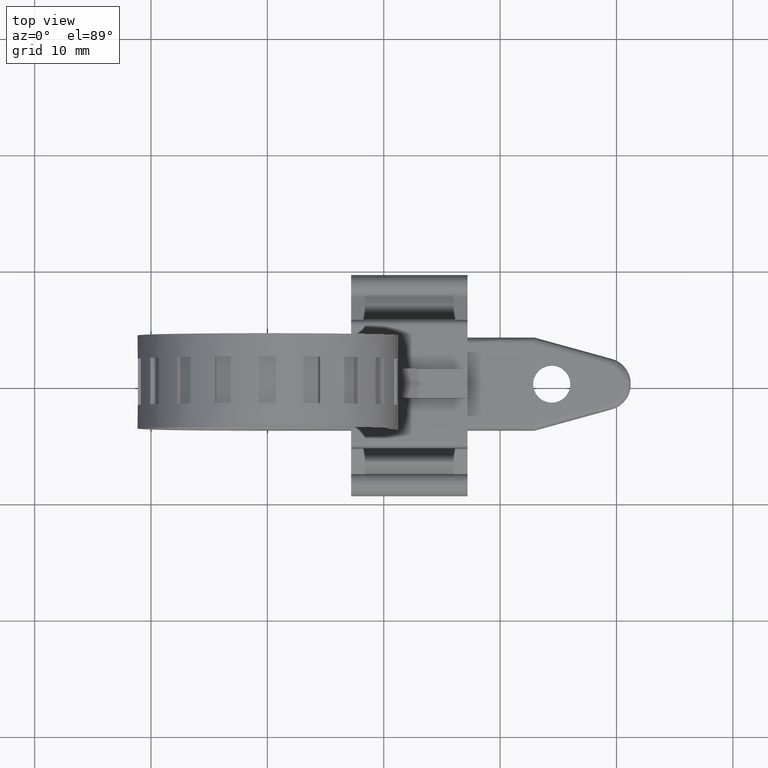
[diagram: clean part render]
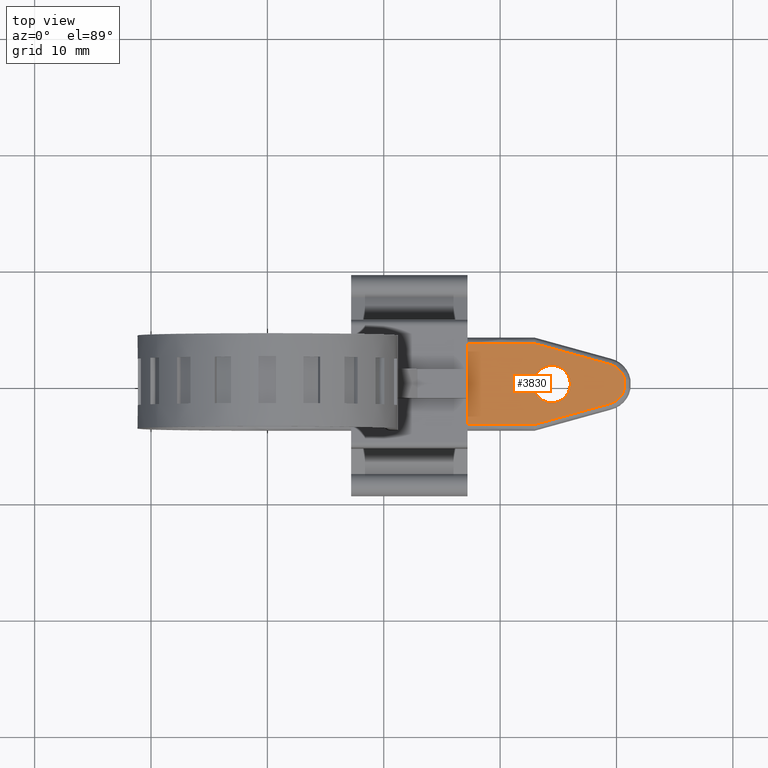
[diagram: same view with one face highlighted and labeled with its STEP entity id]
A machine part, top view. The second image highlights one B-rep face of the part: STEP entity #3830.
In plain terms, the highlighted face is a freeform B-spline surface patch.
Its self-contained STEP definition (entity closure, byte-faithful):
#79=CARTESIAN_POINT('',(23.314545099250640,-1.141200833841867,-10.0));
#80=VERTEX_POINT('',#79);
#86=CARTESIAN_POINT('',(24.435999452946490,-1.599999999999907,-10.0));
#87=VERTEX_POINT('',#86);
#88=CARTESIAN_POINT('',(24.435999452946490,-1.599999999999907,-10.0));
#89=CARTESIAN_POINT('',(24.254749882650781,-1.600136456673561,-10.000000000000020));
#90=CARTESIAN_POINT('',(24.002430030244721,-1.556632950729451,-9.999999999999989));
#91=CARTESIAN_POINT('',(23.621104679719942,-1.392460794337070,-10.000000000000011));
#92=CARTESIAN_POINT('',(23.429906362106600,-1.254678650272071,-10.000000000000011));
#93=CARTESIAN_POINT('',(23.314545099250640,-1.141200833841867,-10.0));
#94=B_SPLINE_CURVE_WITH_KNOTS('',3,(#88,#89,#90,#91,#92,#93),.UNSPECIFIED.,.F.,.U.,(4,1,1,4),(0.000000013596540,0.543678261587329,0.757257994766766,1.242681533203548),.UNSPECIFIED.);
#95=EDGE_CURVE('',#87,#80,#94,.T.);
#97=CARTESIAN_POINT('',(26.036000000000001,0.0,-10.0));
#98=VERTEX_POINT('',#97);
#99=CARTESIAN_POINT('',(26.036000000000001,0.0,-10.0));
#100=CARTESIAN_POINT('',(26.036050492453789,-0.143994116947893,-10.0));
#101=CARTESIAN_POINT('',(26.002186587456659,-0.392676208799142,-9.999999999999991));
#102=CARTESIAN_POINT('',(25.867281713616709,-0.742431577971702,-10.000000000000011));
#103=CARTESIAN_POINT('',(25.689541632746639,-1.011992390424484,-9.999999999999996));
#104=CARTESIAN_POINT('',(25.434066824162411,-1.267499508801031,-9.999999999999998));
#105=CARTESIAN_POINT('',(25.149491715285482,-1.447700311673275,-10.000000000000011));
#106=CARTESIAN_POINT('',(24.795956915515120,-1.571725554159203,-10.0));
#107=CARTESIAN_POINT('',(24.566899573814979,-1.600029696695359,-10.0));
#108=CARTESIAN_POINT('',(24.435999452946490,-1.599999999999907,-10.0));
#109=B_SPLINE_CURVE_WITH_KNOTS('',3,(#99,#100,#101,#102,#103,#104,#105,#106,#107,#108),.UNSPECIFIED.,.F.,.U.,(4,1,1,1,1,1,1,4),(0.000000056140915,0.431970137306017,0.746134376450957,1.119203929897348,1.394090110942929,1.826060912338060,2.120594869391015,2.513290200935472),.UNSPECIFIED.);
#110=EDGE_CURVE('',#98,#87,#109,.T.);
#112=CARTESIAN_POINT('',(24.436000547053538,1.599999999999906,-10.0));
#113=VERTEX_POINT('',#112);
#114=CARTESIAN_POINT('',(24.436000547053538,1.599999999999906,-10.0));
#115=CARTESIAN_POINT('',(24.638926391554399,1.600207500384509,-9.999999999999984));
#116=CARTESIAN_POINT('',(24.985659074126481,1.533083924840616,-10.000000000000060));
#117=CARTESIAN_POINT('',(25.376423317711708,1.311685211353241,-9.999999999999940));
#118=CARTESIAN_POINT('',(25.633070960019769,1.076133640287182,-10.000000000000060));
#119=CARTESIAN_POINT('',(25.848600394711269,0.785632366694658,-10.000000000000011));
#120=CARTESIAN_POINT('',(26.000514867467789,0.418888846804333,-10.000000000000020));
#121=CARTESIAN_POINT('',(26.036019219092129,0.130895287808468,-9.999999999999998));
#122=CARTESIAN_POINT('',(26.036000000000001,0.0,-10.0));
#123=B_SPLINE_CURVE_WITH_KNOTS('',3,(#114,#115,#116,#117,#118,#119,#120,#121,#122),.UNSPECIFIED.,.F.,.U.,(4,1,1,1,1,1,4),(0.000000056331142,0.608687728947772,1.040670461661401,1.335171807848389,1.649340070472496,2.120594348823151,2.513289584274786),.UNSPECIFIED.);
#124=EDGE_CURVE('',#113,#98,#123,.T.);
#126=CARTESIAN_POINT('',(23.294799359552659,1.121454707362894,-10.0));
#127=VERTEX_POINT('',#126);
#128=CARTESIAN_POINT('',(23.294799359552659,1.121454707362894,-10.0));
#129=CARTESIAN_POINT('',(23.410706163746031,1.239523272985817,-10.000000000000041));
#130=CARTESIAN_POINT('',(23.641951764104061,1.411169723780476,-9.999999999999963));
#131=CARTESIAN_POINT('',(24.038958077419380,1.566152553052406,-10.000000000000030));
#132=CARTESIAN_POINT('',(24.297023167911629,1.600044669066972,-9.999999999999996));
#133=CARTESIAN_POINT('',(24.436000547053538,1.599999999999906,-10.0));
#134=B_SPLINE_CURVE_WITH_KNOTS('',3,(#128,#129,#130,#131,#132,#133),.UNSPECIFIED.,.F.,.U.,(4,1,1,4),(0.000000015188152,0.496332536572291,0.853688216134597,1.270608366407467),.UNSPECIFIED.);
#135=EDGE_CURVE('',#127,#113,#134,.T.);
#221=CARTESIAN_POINT('',(22.835999999999999,0.0,-10.0));
#222=VERTEX_POINT('',#221);
#223=CARTESIAN_POINT('',(22.835999999999999,0.0,-10.0));
#224=CARTESIAN_POINT('',(22.835961595476071,0.135922151482010,-10.0));
#225=CARTESIAN_POINT('',(22.868362715676628,0.388318598275756,-9.999999999999991));
#226=CARTESIAN_POINT('',(23.016728970572721,0.777716981774805,-10.000000000000011));
#227=CARTESIAN_POINT('',(23.181321570495481,1.006096577409905,-10.000000000000011));
#228=CARTESIAN_POINT('',(23.294799359552659,1.121454707362894,-10.0));
#229=B_SPLINE_CURVE_WITH_KNOTS('',3,(#223,#224,#225,#226,#227,#228),.UNSPECIFIED.,.F.,.U.,(4,1,1,4),(0.000000013594002,0.407756697681166,0.757258261955232,1.242681971681430),.UNSPECIFIED.);
#230=EDGE_CURVE('',#222,#127,#229,.T.);
#232=CARTESIAN_POINT('',(23.314545099250640,-1.141200833841867,-10.0));
#233=CARTESIAN_POINT('',(23.191729480634329,-1.020668096957040,-9.999999999999996));
#234=CARTESIAN_POINT('',(23.049148356624261,-0.825970937196342,-10.000000000000011));
#235=CARTESIAN_POINT('',(22.880186109058510,-0.436691439471850,-9.999999999999989));
#236=CARTESIAN_POINT('',(22.835855970135491,-0.185324057031745,-10.000000000000020));
#237=CARTESIAN_POINT('',(22.835999999999999,0.0,-10.0));
#238=B_SPLINE_CURVE_WITH_KNOTS('',3,(#232,#233,#234,#235,#236,#237),.UNSPECIFIED.,.F.,.U.,(4,1,1,4),(0.000000015183401,0.516190143935640,0.714711525182580,1.270607925553771),.UNSPECIFIED.);
#239=EDGE_CURVE('',#80,#222,#238,.T.);
#962=CARTESIAN_POINT('',(29.364601214751051,-1.708555272793075,-9.999999999999890));
#963=VERTEX_POINT('',#962);
#975=CARTESIAN_POINT('',(22.868321908632151,-3.500000000000000,-9.999999999999890));
#976=VERTEX_POINT('',#975);
#977=CARTESIAN_POINT('',(22.868321908632151,-3.500000000000000,-9.999999999999890));
#978=CARTESIAN_POINT('',(29.364601214751051,-1.708555272793075,-9.999999999999890));
#979=QUASI_UNIFORM_CURVE('',1,(#977,#978),.UNSPECIFIED.,.F.,.U.);
#980=EDGE_CURVE('',#976,#963,#979,.T.);
#1022=CARTESIAN_POINT('',(30.699999999999999,-0.353134535269372,-9.999999999999890));
#1023=VERTEX_POINT('',#1022);
#1035=CARTESIAN_POINT('',(29.364601214751051,-1.708555272793075,-9.999999999999890));
#1036=CARTESIAN_POINT('',(29.497589265806120,-1.679108004586955,-9.999999999999892));
#1037=CARTESIAN_POINT('',(29.766599553641051,-1.585492999643014,-9.999999999999901));
#1038=CARTESIAN_POINT('',(30.094017859241951,-1.372251664051428,-9.999999999999881));
#1039=CARTESIAN_POINT('',(30.374577216376832,-1.087463329534524,-9.999999999999909));
#1040=CARTESIAN_POINT('',(30.582938396045090,-0.756926206690277,-9.999999999999837));
#1041=CARTESIAN_POINT('',(30.672537008904431,-0.486545644042777,-9.999999999999917));
#1042=CARTESIAN_POINT('',(30.699999999999999,-0.353134535269372,-9.999999999999890));
#1043=B_SPLINE_CURVE_WITH_KNOTS('',3,(#1035,#1036,#1037,#1038,#1039,#1040,#1041,#1042),.UNSPECIFIED.,.F.,.U.,(4,1,1,1,1,4),(0.000000027176362,0.408631646765388,0.848704171422450,1.163021750079061,1.603094274736303,2.011725894325623),.UNSPECIFIED.);
#1044=EDGE_CURVE('',#963,#1023,#1043,.T.);
#1075=CARTESIAN_POINT('',(29.364601214755250,1.708555272792145,-9.999999999999890));
#1076=VERTEX_POINT('',#1075);
#1096=CARTESIAN_POINT('',(22.868321908632751,3.499999999999950,-9.999999999999890));
#1097=VERTEX_POINT('',#1096);
#1109=CARTESIAN_POINT('',(29.364601214755250,1.708555272792145,-9.999999999999890));
#1110=CARTESIAN_POINT('',(22.868321908632751,3.499999999999950,-9.999999999999890));
#1111=QUASI_UNIFORM_CURVE('',1,(#1109,#1110),.UNSPECIFIED.,.F.,.U.);
#1112=EDGE_CURVE('',#1076,#1097,#1111,.T.);
#1133=CARTESIAN_POINT('',(30.699999999999999,0.353134535269372,-9.999999999999890));
#1134=VERTEX_POINT('',#1133);
#1146=CARTESIAN_POINT('',(30.699999999999999,-0.353134535269372,-9.999999999999890));
#1147=CARTESIAN_POINT('',(30.699999999999999,0.353134535269372,-9.999999999999890));
#1148=QUASI_UNIFORM_CURVE('',1,(#1146,#1147),.UNSPECIFIED.,.F.,.U.);
#1149=EDGE_CURVE('',#1023,#1134,#1148,.T.);
#1178=CARTESIAN_POINT('',(30.699999999999999,0.353134535269372,-9.999999999999890));
#1179=CARTESIAN_POINT('',(30.664129015672920,0.527610821482105,-9.999999999999870));
#1180=CARTESIAN_POINT('',(30.549529444730350,0.835584042447412,-9.999999999999920));
#1181=CARTESIAN_POINT('',(30.267915978338390,1.218387498599526,-9.999999999999869));
#1182=CARTESIAN_POINT('',(29.883537636756991,1.532445232818671,-9.999999999999861));
#1183=CARTESIAN_POINT('',(29.559013133286001,1.665622916966663,-9.999999999999956));
#1184=CARTESIAN_POINT('',(29.364601214755250,1.708555272792145,-9.999999999999890));
#1185=B_SPLINE_CURVE_WITH_KNOTS('',3,(#1178,#1179,#1180,#1181,#1182,#1183,#1184),.UNSPECIFIED.,.F.,.U.,(4,1,1,1,4),(0.000000027174395,0.534365630621432,0.974436414956052,1.414494580336615,2.011725894321348),.UNSPECIFIED.);
#1186=EDGE_CURVE('',#1134,#1076,#1185,.T.);
#3717=CARTESIAN_POINT('',(17.199999999999999,-3.500000000000000,-9.999999999999890));
#3718=VERTEX_POINT('',#3717);
#3744=CARTESIAN_POINT('',(17.199999999999999,-3.500000000000000,-9.999999999999890));
#3745=CARTESIAN_POINT('',(22.868321908632151,-3.500000000000000,-9.999999999999890));
#3746=QUASI_UNIFORM_CURVE('',1,(#3744,#3745),.UNSPECIFIED.,.F.,.U.);
#3747=EDGE_CURVE('',#3718,#976,#3746,.T.);
#3766=CARTESIAN_POINT('',(17.199999999999999,3.499999999999950,-9.999999999999890));
#3767=VERTEX_POINT('',#3766);
#3775=CARTESIAN_POINT('',(22.868321908632751,3.499999999999950,-9.999999999999890));
#3776=CARTESIAN_POINT('',(17.199999999999999,3.499999999999950,-9.999999999999890));
#3777=QUASI_UNIFORM_CURVE('',1,(#3775,#3776),.UNSPECIFIED.,.F.,.U.);
#3778=EDGE_CURVE('',#1097,#3767,#3777,.T.);
#3803=CARTESIAN_POINT('',(31.374325812701290,-3.849649986432640,-9.999999999999890));
#3804=CARTESIAN_POINT('',(16.525675635691581,-3.849649986432640,-9.999999999999890));
#3805=CARTESIAN_POINT('',(31.374325812701290,3.849650174187221,-9.999999999999890));
#3806=CARTESIAN_POINT('',(16.525675635691581,3.849650174187221,-9.999999999999890));
#3807=B_SPLINE_SURFACE_WITH_KNOTS('',1,1,((#3803,#3805),(#3804,#3806)),.UNSPECIFIED.,.F.,.F.,.U.,(2,2),(2,2),(0.0,14.848650177009700),(0.0,7.699300160619861),.UNSPECIFIED.);
#3808=ORIENTED_EDGE('',*,*,#3778,.T.);
#3809=CARTESIAN_POINT('',(17.199999999999999,3.499999999999950,-9.999999999999890));
#3810=CARTESIAN_POINT('',(17.199999999999999,-3.500000000000000,-9.999999999999890));
#3811=QUASI_UNIFORM_CURVE('',1,(#3809,#3810),.UNSPECIFIED.,.F.,.U.);
#3812=EDGE_CURVE('',#3767,#3718,#3811,.T.);
#3813=ORIENTED_EDGE('',*,*,#3812,.T.);
#3814=ORIENTED_EDGE('',*,*,#3747,.T.);
#3815=ORIENTED_EDGE('',*,*,#980,.T.);
#3816=ORIENTED_EDGE('',*,*,#1044,.T.);
#3817=ORIENTED_EDGE('',*,*,#1149,.T.);
#3818=ORIENTED_EDGE('',*,*,#1186,.T.);
#3819=ORIENTED_EDGE('',*,*,#1112,.T.);
#3820=EDGE_LOOP('',(#3808,#3813,#3814,#3815,#3816,#3817,#3818,#3819));
#3821=FACE_OUTER_BOUND('',#3820,.T.);
#3822=ORIENTED_EDGE('',*,*,#124,.T.);
#3823=ORIENTED_EDGE('',*,*,#110,.T.);
#3824=ORIENTED_EDGE('',*,*,#95,.T.);
#3825=ORIENTED_EDGE('',*,*,#239,.T.);
#3826=ORIENTED_EDGE('',*,*,#230,.T.);
#3827=ORIENTED_EDGE('',*,*,#135,.T.);
#3828=EDGE_LOOP('',(#3822,#3823,#3824,#3825,#3826,#3827));
#3829=FACE_BOUND('',#3828,.T.);
#3830=ADVANCED_FACE('',(#3821,#3829),#3807,.F.);